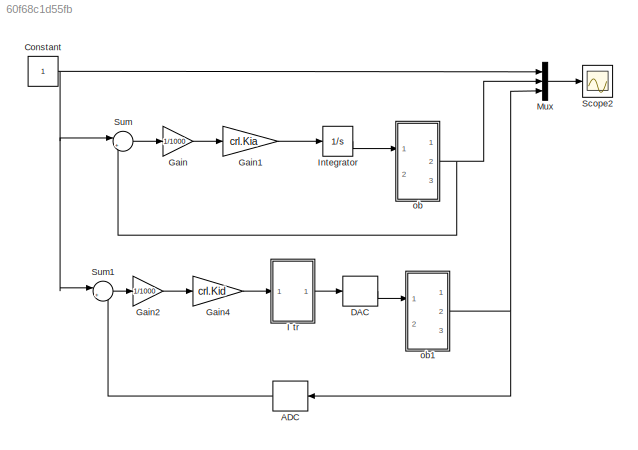
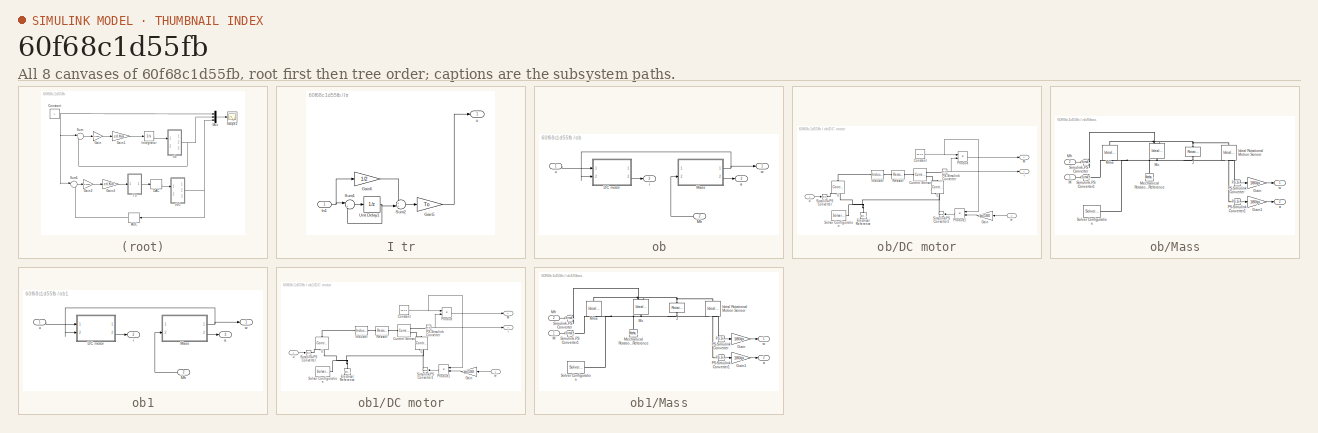
[diagram: thumbnail index - all 8 canvases of the model, root first then tree order]
MODEL slx_60f68c1d55fb
KIND model
CONFIG AbsTol = auto
CONFIG EnableMultiTasking = off
CONFIG FixedStep = To/100
CONFIG MaxStep = auto
CONFIG MinStep = auto
CONFIG RelTol = 1e-3
CONFIG SampleTimeConstraint = Unconstrained
CONFIG SolverName = ode3
CONFIG StartTime = 0.0
CONFIG StopTime = Tmdl
BLOCK [ZeroOrderHold] ADC
  NameLocation = top
  SampleTime = To
BLOCK [Constant] Constant
BLOCK [ZeroOrderHold] DAC
  SampleTime = To
BLOCK [Gain] Gain
  Gain = 1/1000
BLOCK [Gain] Gain1
  Gain = crl.Kia
BLOCK [Gain] Gain2
  Gain = 1/1000
BLOCK [Gain] Gain4
  Gain = crl.Kid
BLOCK [SubSystem] I tr
  Ports = [1, 1]
  RequestExecContextInheritance = off
BLOCK [Gain] I tr/Gain5
  Gain = To
BLOCK [Gain] I tr/Gain6
  Gain = 1/2
BLOCK [Inport] I tr/In1
BLOCK [Sum] I tr/Sum1
  Inputs = |++
  Ports = [2, 1]
BLOCK [Sum] I tr/Sum2
  Inputs = ++|
  Ports = [2, 1]
BLOCK [UnitDelay] I tr/Unit Delay1
  HasFrameUpgradeWarning = on
  SampleTime = -1
BLOCK [Outport] I tr/u
BLOCK [Integrator] Integrator
  Ports = [1, 1]
BLOCK [Mux] Mux
  DisplayOption = bar
  Inputs = 3
  Ports = [3, 1]
BLOCK [Scope] Scope2
  Floating = off
  NumInputPorts = 1
  Ports = [1]
  ScopeSpecificationString = Simulink.scopes.TimeScopeBlockCfg('CurrentConfiguration', extmgr.ConfigurationSet(extmgr.Configuration('Core','General UI',true),extmgr.Configuration('Core','Source UI',true),extmgr.Configuration('Sources','WiredSimulink',true,'DataLoggingVariableName','ia','DataLogging',true,'DataLoggingSaveFormat','Array'),extmgr.Configuration('Visuals','Time Domain',true,'SerializedDisplays',{struct('MinYLimRea...<+1588ch>
BLOCK [Sum] Sum
  Inputs = |+-
  Ports = [2, 1]
BLOCK [Sum] Sum1
  Inputs = |+-
  Ports = [2, 1]
BLOCK [SubSystem] ob
  Ports = [2, 3]
  RequestExecContextInheritance = off
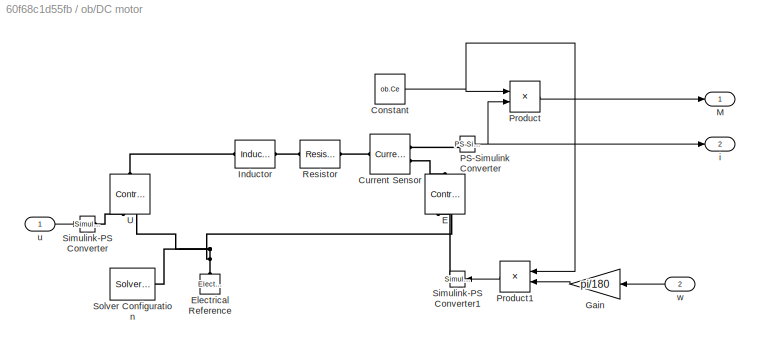
BLOCK [SubSystem] ob/DC motor
  Ports = [2, 2]
  RequestExecContextInheritance = off
BLOCK [Constant] ob/DC motor/Constant
  Value = ob.Ce
BLOCK [Reference] ob/DC motor/Current Sensor  REF=fl_lib/Electrical/Electrical Sensors/Current Sensor
  Ports = [0, 0, 0, 0, 0, 1, 2]
  SourceBlock = fl_lib/Electrical/Electrical Sensors/Current Sensor
  SourceProductBaseCode = PW,SS,VE
  SourceType = Current Sensor
BLOCK [Reference] ob/DC motor/E  REF=fl_lib/Electrical/Electrical Sources/Controlled Voltage
Source
  NameLocation = right
  Ports = [0, 0, 0, 0, 0, 1, 2]
  SourceBlock = fl_lib/Electrical/Electrical Sources/Controlled Voltage\nSource
  SourceProductBaseCode = PW,SS,VE
  SourceType = Controlled Voltage\nSource
BLOCK [Reference] ob/DC motor/Electrical Reference  REF=fl_lib/Electrical/Electrical Elements/Electrical Reference
  NameLocation = right
  Ports = [0, 0, 0, 0, 0, 1]
  SourceBlock = fl_lib/Electrical/Electrical Elements/Electrical Reference
  SourceProductBaseCode = PW,SS,VE
  SourceType = Electrical Reference
BLOCK [Gain] ob/DC motor/Gain
  Gain = pi/180
  NameLocation = top
BLOCK [Reference] ob/DC motor/Inductor  REF=fl_lib/Electrical/Electrical Elements/Inductor
  Ports = [0, 0, 0, 0, 0, 1, 1]
  SourceBlock = fl_lib/Electrical/Electrical Elements/Inductor
  SourceProductBaseCode = PW,SS,VE
  SourceType = Inductor
BLOCK [Outport] ob/DC motor/M
BLOCK [Reference] ob/DC motor/PS-Simulink Converter  REF=nesl_utility/PS-Simulink
Converter
  Ports = [0, 1, 0, 0, 0, 1]
  SourceBlock = nesl_utility/PS-Simulink\nConverter
  SourceProductBaseCode = SS,PW,VE
  SourceType = PS-Simulink\nConverter
BLOCK [Product] ob/DC motor/Product
  Ports = [2, 1]
BLOCK [Product] ob/DC motor/Product1
  NameLocation = top
  Ports = [2, 1]
BLOCK [Reference] ob/DC motor/Resistor  REF=fl_lib/Electrical/Electrical Elements/Resistor
  Ports = [0, 0, 0, 0, 0, 1, 1]
  SourceBlock = fl_lib/Electrical/Electrical Elements/Resistor
  SourceProductBaseCode = PW,SS,VE
  SourceType = Resistor
BLOCK [Reference] ob/DC motor/Simulink-PS Converter  REF=nesl_utility/Simulink-PS
Converter
  Ports = [1, 0, 0, 0, 0, 0, 1]
  SourceBlock = nesl_utility/Simulink-PS\nConverter
  SourceProductBaseCode = SS,PW,VE
  SourceType = Simulink-PS\nConverter
BLOCK [Reference] ob/DC motor/Simulink-PS Converter1  REF=nesl_utility/Simulink-PS
Converter
  NameLocation = top
  Ports = [1, 0, 0, 0, 0, 0, 1]
  SourceBlock = nesl_utility/Simulink-PS\nConverter
  SourceProductBaseCode = SS,PW,VE
  SourceType = Simulink-PS\nConverter
BLOCK [Reference] ob/DC motor/Solver Configuration  REF=nesl_utility/Solver
Configuration
  Ports = [0, 0, 0, 0, 0, 0, 1]
  SourceBlock = nesl_utility/Solver\nConfiguration
  SourceProductBaseCode = SS,PW,VE
  SourceType = Solver\nConfiguration
BLOCK [Reference] ob/DC motor/U  REF=fl_lib/Electrical/Electrical Sources/Controlled Voltage
Source
  NameLocation = right
  Ports = [0, 0, 0, 0, 0, 1, 2]
  SourceBlock = fl_lib/Electrical/Electrical Sources/Controlled Voltage\nSource
  SourceProductBaseCode = PW,SS,VE
  SourceType = Controlled Voltage\nSource
BLOCK [Outport] ob/DC motor/i
  Port = 2
BLOCK [Inport] ob/DC motor/u
BLOCK [Inport] ob/DC motor/w
  Port = 2
BLOCK [SubSystem] ob/Mass
  Ports = [2, 2]
  RequestExecContextInheritance = off
BLOCK [Gain] ob/Mass/Gain
  Gain = 180/pi
BLOCK [Gain] ob/Mass/Gain1
  Gain = 180/pi
BLOCK [Reference] ob/Mass/Ideal Rotational Motion Sensor  REF=fl_lib/Mechanical/Mechanical Sensors/Ideal Rotational
Motion Sensor
  NameLocation = left
  Ports = [0, 0, 0, 0, 0, 1, 3]
  SourceBlock = fl_lib/Mechanical/Mechanical Sensors/Ideal Rotational\nMotion Sensor
  SourceProductBaseCode = PW,SS,VE
  SourceType = Ideal Rotational\nMotion Sensor
BLOCK [Reference] ob/Mass/J  REF=fl_lib/Mechanical/Rotational Elements/Rotational Inerter
  NameLocation = left
  Ports = [0, 0, 0, 0, 0, 1, 1]
  SourceBlock = fl_lib/Mechanical/Rotational Elements/Rotational Inerter
  SourceProductBaseCode = PW,SS,VE
  SourceType = Rotational Inerter
BLOCK [Inport] ob/Mass/M
BLOCK [Reference] ob/Mass/Mc  REF=fl_lib/Mechanical/Mechanical Sources/Ideal Torque Source
  NameLocation = left
  Ports = [0, 0, 0, 0, 0, 1, 2]
  SourceBlock = fl_lib/Mechanical/Mechanical Sources/Ideal Torque Source
  SourceProductBaseCode = PW,SS,VE
  SourceType = Ideal Torque Source
BLOCK [Reference] ob/Mass/Mechanical Rotational Reference  REF=fl_lib/Mechanical/Rotational Elements/Mechanical
Rotational Reference
  NameLocation = right
  Ports = [0, 0, 0, 0, 0, 1]
  SourceBlock = fl_lib/Mechanical/Rotational Elements/Mechanical\nRotational Reference
  SourceProductBaseCode = PW,SS,VE
  SourceType = Mechanical\nRotational Reference
BLOCK [Inport] ob/Mass/Mfr
  Port = 2
BLOCK [Reference] ob/Mass/Mme  REF=fl_lib/Mechanical/Mechanical Sources/Ideal Torque Source
  NameLocation = right
  Ports = [0, 0, 0, 0, 0, 1, 2]
  SourceBlock = fl_lib/Mechanical/Mechanical Sources/Ideal Torque Source
  SourceProductBaseCode = PW,SS,VE
  SourceType = Ideal Torque Source
BLOCK [Reference] ob/Mass/PS-Simulink Converter  REF=nesl_utility/PS-Simulink
Converter
  Ports = [0, 1, 0, 0, 0, 1]
  SourceBlock = nesl_utility/PS-Simulink\nConverter
  SourceProductBaseCode = SS,PW,VE
  SourceType = PS-Simulink\nConverter
BLOCK [Reference] ob/Mass/PS-Simulink Converter1  REF=nesl_utility/PS-Simulink
Converter
  Ports = [0, 1, 0, 0, 0, 1]
  SourceBlock = nesl_utility/PS-Simulink\nConverter
  SourceProductBaseCode = SS,PW,VE
  SourceType = PS-Simulink\nConverter
BLOCK [Reference] ob/Mass/Simulink-PS Converter  REF=nesl_utility/Simulink-PS
Converter
  Ports = [1, 0, 0, 0, 0, 0, 1]
  SourceBlock = nesl_utility/Simulink-PS\nConverter
  SourceProductBaseCode = SS,PW,VE
  SourceType = Simulink-PS\nConverter
BLOCK [Reference] ob/Mass/Simulink-PS Converter1  REF=nesl_utility/Simulink-PS
Converter
  Ports = [1, 0, 0, 0, 0, 0, 1]
  SourceBlock = nesl_utility/Simulink-PS\nConverter
  SourceProductBaseCode = SS,PW,VE
  SourceType = Simulink-PS\nConverter
BLOCK [Reference] ob/Mass/Solver Configuration  REF=nesl_utility/Solver
Configuration
  Ports = [0, 0, 0, 0, 0, 0, 1]
  SourceBlock = nesl_utility/Solver\nConfiguration
  SourceProductBaseCode = SS,PW,VE
  SourceType = Solver\nConfiguration
BLOCK [Outport] ob/Mass/a
  Port = 2
BLOCK [Outport] ob/Mass/w
BLOCK [Inport] ob/Mfr
  Port = 2
BLOCK [Outport] ob/a
  Port = 3
BLOCK [Outport] ob/i
  Port = 2
BLOCK [Inport] ob/u
BLOCK [Outport] ob/w
BLOCK [SubSystem] ob1
  Ports = [2, 3]
  RequestExecContextInheritance = off
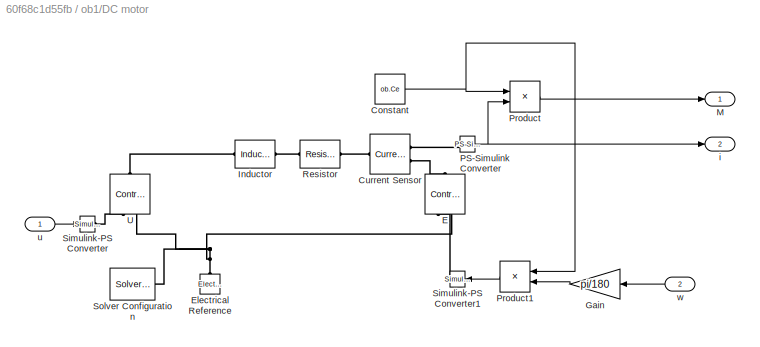
BLOCK [SubSystem] ob1/DC motor
  Ports = [2, 2]
  RequestExecContextInheritance = off
BLOCK [Constant] ob1/DC motor/Constant
  Value = ob.Ce
BLOCK [Reference] ob1/DC motor/Current Sensor  REF=fl_lib/Electrical/Electrical Sensors/Current Sensor
  Ports = [0, 0, 0, 0, 0, 1, 2]
  SourceBlock = fl_lib/Electrical/Electrical Sensors/Current Sensor
  SourceProductBaseCode = PW,SS,VE
  SourceType = Current Sensor
BLOCK [Reference] ob1/DC motor/E  REF=fl_lib/Electrical/Electrical Sources/Controlled Voltage
Source
  NameLocation = right
  Ports = [0, 0, 0, 0, 0, 1, 2]
  SourceBlock = fl_lib/Electrical/Electrical Sources/Controlled Voltage\nSource
  SourceProductBaseCode = PW,SS,VE
  SourceType = Controlled Voltage\nSource
BLOCK [Reference] ob1/DC motor/Electrical Reference  REF=fl_lib/Electrical/Electrical Elements/Electrical Reference
  NameLocation = right
  Ports = [0, 0, 0, 0, 0, 1]
  SourceBlock = fl_lib/Electrical/Electrical Elements/Electrical Reference
  SourceProductBaseCode = PW,SS,VE
  SourceType = Electrical Reference
BLOCK [Gain] ob1/DC motor/Gain
  Gain = pi/180
  NameLocation = top
BLOCK [Reference] ob1/DC motor/Inductor  REF=fl_lib/Electrical/Electrical Elements/Inductor
  Ports = [0, 0, 0, 0, 0, 1, 1]
  SourceBlock = fl_lib/Electrical/Electrical Elements/Inductor
  SourceProductBaseCode = PW,SS,VE
  SourceType = Inductor
BLOCK [Outport] ob1/DC motor/M
BLOCK [Reference] ob1/DC motor/PS-Simulink Converter  REF=nesl_utility/PS-Simulink
Converter
  Ports = [0, 1, 0, 0, 0, 1]
  SourceBlock = nesl_utility/PS-Simulink\nConverter
  SourceProductBaseCode = SS,PW,VE
  SourceType = PS-Simulink\nConverter
BLOCK [Product] ob1/DC motor/Product
  Ports = [2, 1]
BLOCK [Product] ob1/DC motor/Product1
  NameLocation = top
  Ports = [2, 1]
BLOCK [Reference] ob1/DC motor/Resistor  REF=fl_lib/Electrical/Electrical Elements/Resistor
  Ports = [0, 0, 0, 0, 0, 1, 1]
  SourceBlock = fl_lib/Electrical/Electrical Elements/Resistor
  SourceProductBaseCode = PW,SS,VE
  SourceType = Resistor
BLOCK [Reference] ob1/DC motor/Simulink-PS Converter  REF=nesl_utility/Simulink-PS
Converter
  Ports = [1, 0, 0, 0, 0, 0, 1]
  SourceBlock = nesl_utility/Simulink-PS\nConverter
  SourceProductBaseCode = SS,PW,VE
  SourceType = Simulink-PS\nConverter
BLOCK [Reference] ob1/DC motor/Simulink-PS Converter1  REF=nesl_utility/Simulink-PS
Converter
  NameLocation = top
  Ports = [1, 0, 0, 0, 0, 0, 1]
  SourceBlock = nesl_utility/Simulink-PS\nConverter
  SourceProductBaseCode = SS,PW,VE
  SourceType = Simulink-PS\nConverter
BLOCK [Reference] ob1/DC motor/Solver Configuration  REF=nesl_utility/Solver
Configuration
  Ports = [0, 0, 0, 0, 0, 0, 1]
  SourceBlock = nesl_utility/Solver\nConfiguration
  SourceProductBaseCode = SS,PW,VE
  SourceType = Solver\nConfiguration
BLOCK [Reference] ob1/DC motor/U  REF=fl_lib/Electrical/Electrical Sources/Controlled Voltage
Source
  NameLocation = right
  Ports = [0, 0, 0, 0, 0, 1, 2]
  SourceBlock = fl_lib/Electrical/Electrical Sources/Controlled Voltage\nSource
  SourceProductBaseCode = PW,SS,VE
  SourceType = Controlled Voltage\nSource
BLOCK [Outport] ob1/DC motor/i
  Port = 2
BLOCK [Inport] ob1/DC motor/u
BLOCK [Inport] ob1/DC motor/w
  Port = 2
BLOCK [SubSystem] ob1/Mass
  Ports = [2, 2]
  RequestExecContextInheritance = off
BLOCK [Gain] ob1/Mass/Gain
  Gain = 180/pi
BLOCK [Gain] ob1/Mass/Gain1
  Gain = 180/pi
BLOCK [Reference] ob1/Mass/Ideal Rotational Motion Sensor  REF=fl_lib/Mechanical/Mechanical Sensors/Ideal Rotational
Motion Sensor
  NameLocation = left
  Ports = [0, 0, 0, 0, 0, 1, 3]
  SourceBlock = fl_lib/Mechanical/Mechanical Sensors/Ideal Rotational\nMotion Sensor
  SourceProductBaseCode = PW,SS,VE
  SourceType = Ideal Rotational\nMotion Sensor
BLOCK [Reference] ob1/Mass/J  REF=fl_lib/Mechanical/Rotational Elements/Rotational Inerter
  NameLocation = left
  Ports = [0, 0, 0, 0, 0, 1, 1]
  SourceBlock = fl_lib/Mechanical/Rotational Elements/Rotational Inerter
  SourceProductBaseCode = PW,SS,VE
  SourceType = Rotational Inerter
BLOCK [Inport] ob1/Mass/M
BLOCK [Reference] ob1/Mass/Mc  REF=fl_lib/Mechanical/Mechanical Sources/Ideal Torque Source
  NameLocation = left
  Ports = [0, 0, 0, 0, 0, 1, 2]
  SourceBlock = fl_lib/Mechanical/Mechanical Sources/Ideal Torque Source
  SourceProductBaseCode = PW,SS,VE
  SourceType = Ideal Torque Source
BLOCK [Reference] ob1/Mass/Mechanical Rotational Reference  REF=fl_lib/Mechanical/Rotational Elements/Mechanical
Rotational Reference
  NameLocation = right
  Ports = [0, 0, 0, 0, 0, 1]
  SourceBlock = fl_lib/Mechanical/Rotational Elements/Mechanical\nRotational Reference
  SourceProductBaseCode = PW,SS,VE
  SourceType = Mechanical\nRotational Reference
BLOCK [Inport] ob1/Mass/Mfr
  Port = 2
BLOCK [Reference] ob1/Mass/Mme  REF=fl_lib/Mechanical/Mechanical Sources/Ideal Torque Source
  NameLocation = right
  Ports = [0, 0, 0, 0, 0, 1, 2]
  SourceBlock = fl_lib/Mechanical/Mechanical Sources/Ideal Torque Source
  SourceProductBaseCode = PW,SS,VE
  SourceType = Ideal Torque Source
BLOCK [Reference] ob1/Mass/PS-Simulink Converter  REF=nesl_utility/PS-Simulink
Converter
  Ports = [0, 1, 0, 0, 0, 1]
  SourceBlock = nesl_utility/PS-Simulink\nConverter
  SourceProductBaseCode = SS,PW,VE
  SourceType = PS-Simulink\nConverter
BLOCK [Reference] ob1/Mass/PS-Simulink Converter1  REF=nesl_utility/PS-Simulink
Converter
  Ports = [0, 1, 0, 0, 0, 1]
  SourceBlock = nesl_utility/PS-Simulink\nConverter
  SourceProductBaseCode = SS,PW,VE
  SourceType = PS-Simulink\nConverter
BLOCK [Reference] ob1/Mass/Simulink-PS Converter  REF=nesl_utility/Simulink-PS
Converter
  Ports = [1, 0, 0, 0, 0, 0, 1]
  SourceBlock = nesl_utility/Simulink-PS\nConverter
  SourceProductBaseCode = SS,PW,VE
  SourceType = Simulink-PS\nConverter
BLOCK [Reference] ob1/Mass/Simulink-PS Converter1  REF=nesl_utility/Simulink-PS
Converter
  Ports = [1, 0, 0, 0, 0, 0, 1]
  SourceBlock = nesl_utility/Simulink-PS\nConverter
  SourceProductBaseCode = SS,PW,VE
  SourceType = Simulink-PS\nConverter
BLOCK [Reference] ob1/Mass/Solver Configuration  REF=nesl_utility/Solver
Configuration
  Ports = [0, 0, 0, 0, 0, 0, 1]
  SourceBlock = nesl_utility/Solver\nConfiguration
  SourceProductBaseCode = SS,PW,VE
  SourceType = Solver\nConfiguration
BLOCK [Outport] ob1/Mass/a
  Port = 2
BLOCK [Outport] ob1/Mass/w
BLOCK [Inport] ob1/Mfr
  Port = 2
BLOCK [Outport] ob1/a
  Port = 3
BLOCK [Outport] ob1/i
  Port = 2
BLOCK [Inport] ob1/u
BLOCK [Outport] ob1/w
LINE ADC:1 -> Sum1:2
NET Constant:1 -> Mux:1, Sum1:1, Sum:1
LINE DAC:1 -> ob1:1
LINE Gain1:1 -> Integrator:1
LINE Gain2:1 -> Gain4:1
LINE Gain4:1 -> I tr:1
LINE Gain:1 -> Gain1:1
LINE I tr/Gain5:1 -> I tr/u:1
LINE I tr/Gain6:1 -> I tr/Sum2:1
NET I tr/In1:1 -> I tr/Gain6:1, I tr/Sum1:1
LINE I tr/Sum1:1 -> I tr/Unit Delay1:1
LINE I tr/Sum2:1 -> I tr/Gain5:1
NET I tr/Unit Delay1:1 -> I tr/Sum1:2, I tr/Sum2:2
LINE I tr:1 -> DAC:1
LINE Integrator:1 -> ob:1
LINE Mux:1 -> Scope2:1
LINE Sum1:1 -> Gain2:1
LINE Sum:1 -> Gain:1
NET ob/DC motor/Constant:1 -> ob/DC motor/Product1:1, ob/DC motor/Product:1
LINE ob/DC motor/Gain:1 -> ob/DC motor/Product1:2
NET ob/DC motor/PS-Simulink Converter:1 -> ob/DC motor/Product:2, ob/DC motor/i:1
LINE ob/DC motor/Product1:1 -> ob/DC motor/Simulink-PS Converter1:1
LINE ob/DC motor/Product:1 -> ob/DC motor/M:1
LINE ob/DC motor/u:1 -> ob/DC motor/Simulink-PS Converter:1
LINE ob/DC motor/w:1 -> ob/DC motor/Gain:1
LINE ob/DC motor:2 -> ob/i:1
LINE ob/Mass/Gain1:1 -> ob/Mass/a:1
LINE ob/Mass/Gain:1 -> ob/Mass/w:1
LINE ob/Mass/M:1 -> ob/Mass/Simulink-PS Converter1:1
LINE ob/Mass/Mfr:1 -> ob/Mass/Simulink-PS Converter:1
LINE ob/Mass/PS-Simulink Converter1:1 -> ob/Mass/Gain1:1
LINE ob/Mass/PS-Simulink Converter:1 -> ob/Mass/Gain:1
NET ob/Mass:1 -> ob/DC motor:2, ob/w:1
LINE ob/Mass:2 -> ob/a:1
LINE ob/Mfr:1 -> ob/Mass:2
LINE ob/u:1 -> ob/DC motor:1
NET ob1/DC motor/Constant:1 -> ob1/DC motor/Product1:1, ob1/DC motor/Product:1
LINE ob1/DC motor/Gain:1 -> ob1/DC motor/Product1:2
NET ob1/DC motor/PS-Simulink Converter:1 -> ob1/DC motor/Product:2, ob1/DC motor/i:1
LINE ob1/DC motor/Product1:1 -> ob1/DC motor/Simulink-PS Converter1:1
LINE ob1/DC motor/Product:1 -> ob1/DC motor/M:1
LINE ob1/DC motor/u:1 -> ob1/DC motor/Simulink-PS Converter:1
LINE ob1/DC motor/w:1 -> ob1/DC motor/Gain:1
LINE ob1/DC motor:2 -> ob1/i:1
LINE ob1/Mass/Gain1:1 -> ob1/Mass/a:1
LINE ob1/Mass/Gain:1 -> ob1/Mass/w:1
LINE ob1/Mass/M:1 -> ob1/Mass/Simulink-PS Converter1:1
LINE ob1/Mass/Mfr:1 -> ob1/Mass/Simulink-PS Converter:1
LINE ob1/Mass/PS-Simulink Converter1:1 -> ob1/Mass/Gain1:1
LINE ob1/Mass/PS-Simulink Converter:1 -> ob1/Mass/Gain:1
NET ob1/Mass:1 -> ob1/DC motor:2, ob1/w:1
LINE ob1/Mass:2 -> ob1/a:1
LINE ob1/Mfr:1 -> ob1/Mass:2
LINE ob1/u:1 -> ob1/DC motor:1
NET ob1:2 -> ADC:1, Mux:3
NET ob:2 -> Mux:2, Sum:2
PLINE ob/DC motor/Current Sensor:LConn1 -- ob/DC motor/Resistor:RConn1
PLINE ob/DC motor/Current Sensor:RConn1 -- ob/DC motor/PS-Simulink Converter:LConn1
PLINE ob/DC motor/Current Sensor:RConn2 -- ob/DC motor/E:LConn1
PLINE ob/DC motor/E:RConn1 -- ob/DC motor/Simulink-PS Converter1:RConn1
PNET net1: ob/DC motor/E:RConn2 -- ob/DC motor/Electrical Reference:LConn1 -- ob/DC motor/Solver Configuration:RConn1 -- ob/DC motor/U:RConn2
PLINE ob/DC motor/Inductor:LConn1 -- ob/DC motor/U:LConn1
PLINE ob/DC motor/Inductor:RConn1 -- ob/DC motor/Resistor:LConn1
PLINE ob/DC motor/Simulink-PS Converter:RConn1 -- ob/DC motor/U:RConn1
PNET net2: ob/Mass/Ideal Rotational Motion Sensor:LConn1 -- ob/Mass/J:LConn1 -- ob/Mass/Mc:RConn2 -- ob/Mass/Mme:LConn1
PNET net3: ob/Mass/Ideal Rotational Motion Sensor:RConn1 -- ob/Mass/J:RConn1 -- ob/Mass/Mc:LConn1 -- ob/Mass/Mechanical Rotational Reference:LConn1 -- ob/Mass/Mme:RConn2 -- ob/Mass/Solver Configuration:RConn1
PLINE ob/Mass/Ideal Rotational Motion Sensor:RConn2 -- ob/Mass/PS-Simulink Converter:LConn1
PLINE ob/Mass/Ideal Rotational Motion Sensor:RConn3 -- ob/Mass/PS-Simulink Converter1:LConn1
PLINE ob/Mass/Mc:RConn1 -- ob/Mass/Simulink-PS Converter:RConn1
PLINE ob/Mass/Mme:RConn1 -- ob/Mass/Simulink-PS Converter1:RConn1
PLINE ob1/DC motor/Current Sensor:LConn1 -- ob1/DC motor/Resistor:RConn1
PLINE ob1/DC motor/Current Sensor:RConn1 -- ob1/DC motor/PS-Simulink Converter:LConn1
PLINE ob1/DC motor/Current Sensor:RConn2 -- ob1/DC motor/E:LConn1
PLINE ob1/DC motor/E:RConn1 -- ob1/DC motor/Simulink-PS Converter1:RConn1
PNET net4: ob1/DC motor/E:RConn2 -- ob1/DC motor/Electrical Reference:LConn1 -- ob1/DC motor/Solver Configuration:RConn1 -- ob1/DC motor/U:RConn2
PLINE ob1/DC motor/Inductor:LConn1 -- ob1/DC motor/U:LConn1
PLINE ob1/DC motor/Inductor:RConn1 -- ob1/DC motor/Resistor:LConn1
PLINE ob1/DC motor/Simulink-PS Converter:RConn1 -- ob1/DC motor/U:RConn1
PNET net5: ob1/Mass/Ideal Rotational Motion Sensor:LConn1 -- ob1/Mass/J:LConn1 -- ob1/Mass/Mc:RConn2 -- ob1/Mass/Mme:LConn1
PNET net6: ob1/Mass/Ideal Rotational Motion Sensor:RConn1 -- ob1/Mass/J:RConn1 -- ob1/Mass/Mc:LConn1 -- ob1/Mass/Mechanical Rotational Reference:LConn1 -- ob1/Mass/Mme:RConn2 -- ob1/Mass/Solver Configuration:RConn1
PLINE ob1/Mass/Ideal Rotational Motion Sensor:RConn2 -- ob1/Mass/PS-Simulink Converter:LConn1
PLINE ob1/Mass/Ideal Rotational Motion Sensor:RConn3 -- ob1/Mass/PS-Simulink Converter1:LConn1
PLINE ob1/Mass/Mc:RConn1 -- ob1/Mass/Simulink-PS Converter:RConn1
PLINE ob1/Mass/Mme:RConn1 -- ob1/Mass/Simulink-PS Converter1:RConn1
note: NET lines group one-source signal fan-out (src -> all destinations, sorted); 1:1 wires keep LINE; PNET lines group multi-terminal physical nets as a canonical sorted terminal list (undirected conserving connections); 2-terminal nets keep the pairwise PLINE form
